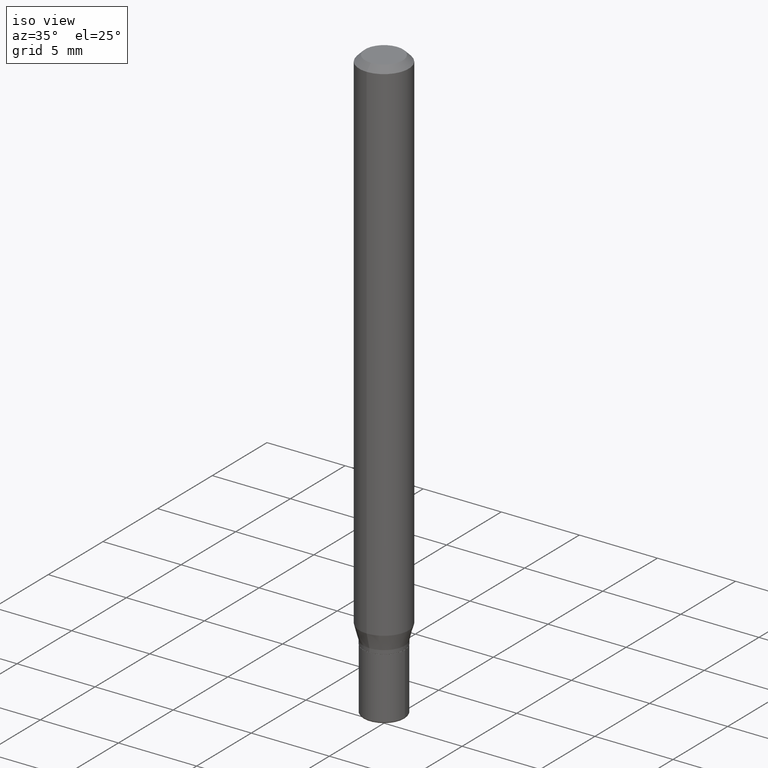
[diagram: clean part render]
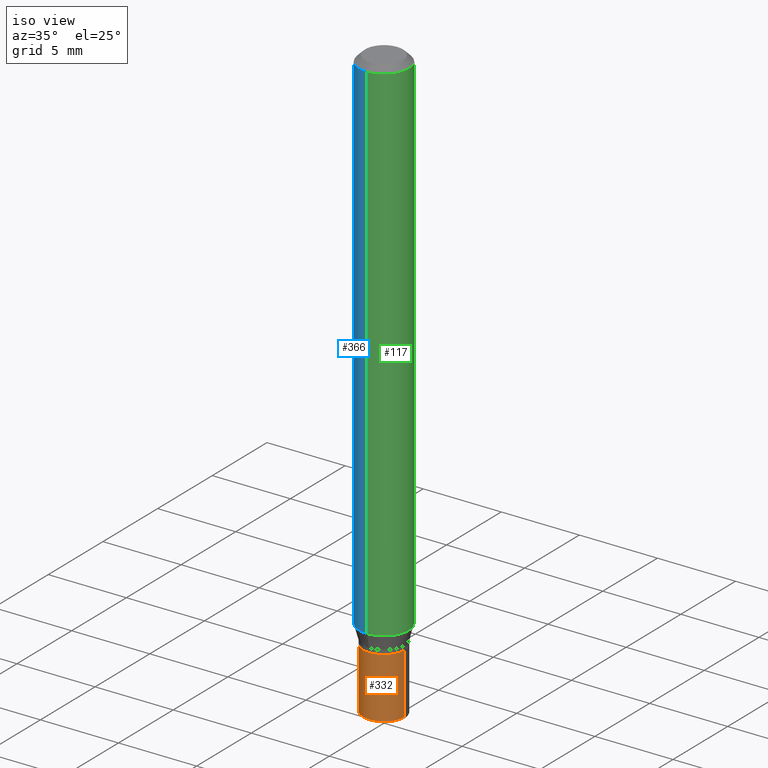
[diagram: same view with three faces highlighted in distinct colors, each labeled with its STEP entity id]
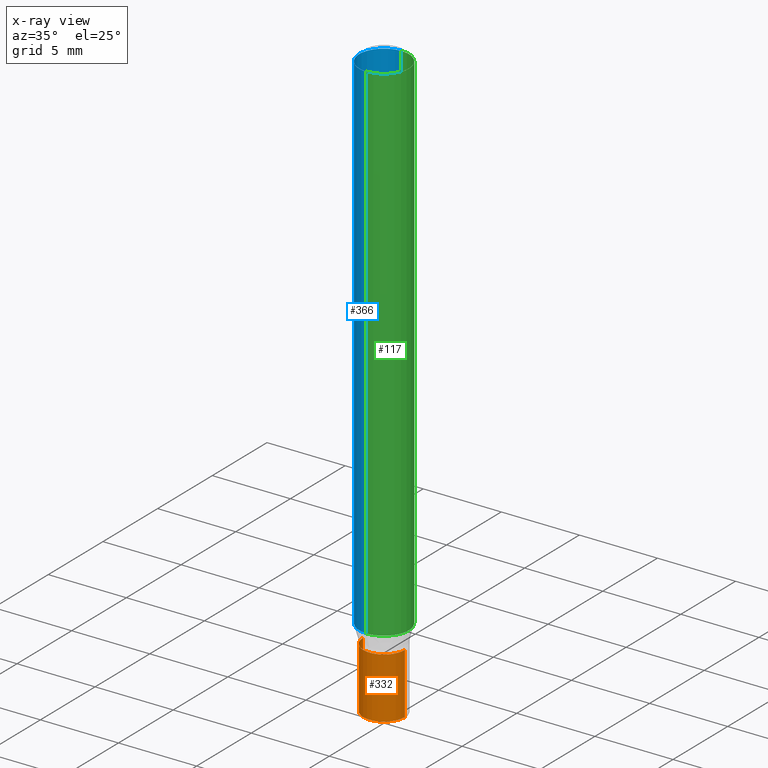
[diagram: x-ray of the same camera — body ghosted, the three highlighted faces saturated]
A machine part, iso view with three faces highlighted in distinct colors.
The next image is the same camera in x-ray (body ghosted, the three faces saturated) — at least one of them is partly hidden behind the body in this view.
Their STEP definitions:

[orange] entity #332 — the highlighted cylindrical surface (edge-blend (fillet) strip) has radius 1.3335 mm, axis along (-0, 0, 1).
#10 = DIRECTION ( 'NONE',  ( 1.000000000000000000, -6.982962677686266711E-15, 4.876176775795936353E-29 ) ) ;
#15 = DIRECTION ( 'NONE',  ( -2.445468806185136597E-29, 3.491481338843145583E-15, 1.000000000000000000 ) ) ;
#16 = EDGE_LOOP ( 'NONE', ( #365, #457, #370, #82 ) ) ;
#23 = CARTESIAN_POINT ( 'NONE',  ( -0.05249999999999999806, -4.579631342874949516E-15, -1.342000000000000082 ) ) ;
#24 = VERTEX_POINT ( 'NONE', #36 ) ;
#36 = CARTESIAN_POINT ( 'NONE',  ( 0.05250000000000017153, -5.586370142149033090E-15, -1.495000000000000107 ) ) ;
#44 = EDGE_CURVE ( 'NONE', #368, #258, #391, .T. ) ;
#65 = CARTESIAN_POINT ( 'NONE',  ( 3.655975865246779122E-29, -5.219764601570503141E-15, -1.495000000000000107 ) ) ;
#80 = CARTESIAN_POINT ( 'NONE',  ( -0.05250000000000017153, -4.579631342874947939E-15, -1.495000000000000107 ) ) ;
#82 = ORIENTED_EDGE ( 'NONE', *, *, #44, .F. ) ;
#84 = CYLINDRICAL_SURFACE ( 'NONE', #261, 0.05250000000000008826 ) ;
#149 = DIRECTION ( 'NONE',  ( 1.000000000000000000, -6.982962677686268288E-15, 0.000000000000000000 ) ) ;
#152 = DIRECTION ( 'NONE',  ( -2.445468806185136877E-29, 3.491481338843145188E-15, 1.000000000000000000 ) ) ;
#164 = CIRCLE ( 'NONE', #324, 0.05250000000000017153 ) ;
#170 = DIRECTION ( 'NONE',  ( -2.445468806185136877E-29, 3.491481338843145188E-15, 1.000000000000000000 ) ) ;
#178 = LINE ( 'NONE', #259, #236 ) ;
#183 = CARTESIAN_POINT ( 'NONE',  ( 3.281819137900453057E-29, -4.685567956727500961E-15, -1.342000000000000082 ) ) ;
#236 = VECTOR ( 'NONE', #170, 39.37007874015748143 ) ;
#237 = CARTESIAN_POINT ( 'NONE',  ( 0.05250000000000008826, -3.666055405785296038E-16, 2.559992807292870916E-30 ) ) ;
#258 = VERTEX_POINT ( 'NONE', #471 ) ;
#259 = CARTESIAN_POINT ( 'NONE',  ( -0.05250000000000008826, 3.730349362740532247E-16, -2.582440922383829865E-30 ) ) ;
#261 = AXIS2_PLACEMENT_3D ( 'NONE', #364, #15, #10 ) ;
#298 = VECTOR ( 'NONE', #152, 39.37007874015748143 ) ;
#309 = LINE ( 'NONE', #237, #298 ) ;
#324 = AXIS2_PLACEMENT_3D ( 'NONE', #65, #375, #385 ) ;
#332 = ADVANCED_FACE ( 'NONE', ( #360 ), #84, .T. ) ;
#338 = DIRECTION ( 'NONE',  ( -2.445468806185136597E-29, 3.491481338843145583E-15, 1.000000000000000000 ) ) ;
#358 = AXIS2_PLACEMENT_3D ( 'NONE', #183, #338, #149 ) ;
#360 = FACE_OUTER_BOUND ( 'NONE', #16, .T. ) ;
#364 = CARTESIAN_POINT ( 'NONE',  ( 0.000000000000000000, 0.000000000000000000, 0.000000000000000000 ) ) ;
#365 = ORIENTED_EDGE ( 'NONE', *, *, #374, .F. ) ;
#368 = VERTEX_POINT ( 'NONE', #23 ) ;
#370 = ORIENTED_EDGE ( 'NONE', *, *, #456, .T. ) ;
#374 = EDGE_CURVE ( 'NONE', #454, #368, #178, .T. ) ;
#375 = DIRECTION ( 'NONE',  ( -2.445468806185136597E-29, 3.491481338843145583E-15, 1.000000000000000000 ) ) ;
#385 = DIRECTION ( 'NONE',  ( 1.000000000000000000, -6.982962677686263555E-15, 0.000000000000000000 ) ) ;
#391 = CIRCLE ( 'NONE', #358, 0.05249999999999999806 ) ;
#399 = EDGE_CURVE ( 'NONE', #454, #24, #164, .T. ) ;
#454 = VERTEX_POINT ( 'NONE', #80 ) ;
#456 = EDGE_CURVE ( 'NONE', #24, #258, #309, .T. ) ;
#457 = ORIENTED_EDGE ( 'NONE', *, *, #399, .T. ) ;
#471 = CARTESIAN_POINT ( 'NONE',  ( 0.05249999999999999806, -5.052173497306030121E-15, -1.342000000000000082 ) ) ;

[blue] entity #366 — the highlighted cylindrical surface (edge-blend (fillet) strip) has radius 1.5875 mm, axis along (-0, 0, 1).
#1 = CARTESIAN_POINT ( 'NONE',  ( 4.440892098500944664E-16, 0.06249999999999995143, -0.01499999999999992138 ) ) ;
#4 = CARTESIAN_POINT ( 'NONE',  ( -4.364351673553916201E-16, -0.06250000000000000000, 2.182069885281771942E-16 ) ) ;
#13 = AXIS2_PLACEMENT_3D ( 'NONE', #369, #463, #254 ) ;
#38 = CARTESIAN_POINT ( 'NONE',  ( 3.668380774558412962E-31, -5.236967724676149048E-17, -0.01499999999999970281 ) ) ;
#46 = EDGE_CURVE ( 'NONE', #128, #354, #444, .T. ) ;
#72 = LINE ( 'NONE', #4, #281 ) ;
#108 = VERTEX_POINT ( 'NONE', #432 ) ;
#110 = CARTESIAN_POINT ( 'NONE',  ( 3.166251571593529273E-29, -4.520129808671913601E-15, -1.294679491924312087 ) ) ;
#125 = AXIS2_PLACEMENT_3D ( 'NONE', #110, #426, #483 ) ;
#128 = VERTEX_POINT ( 'NONE', #1 ) ;
#140 = DIRECTION ( 'NONE',  ( -2.445587183038990238E-29, 3.491311816450834712E-15, 1.000000000000000000 ) ) ;
#148 = ORIENTED_EDGE ( 'NONE', *, *, #403, .F. ) ;
#195 = DIRECTION ( 'NONE',  ( -2.445587183038990238E-29, 3.491311816450835107E-15, 1.000000000000000000 ) ) ;
#221 = FACE_OUTER_BOUND ( 'NONE', #420, .T. ) ;
#231 = DIRECTION ( 'NONE',  ( -2.445587183038990238E-29, 3.491311816450834712E-15, 1.000000000000000000 ) ) ;
#238 = ORIENTED_EDGE ( 'NONE', *, *, #310, .T. ) ;
#251 = CYLINDRICAL_SURFACE ( 'NONE', #13, 0.06250000000000000000 ) ;
#254 = DIRECTION ( 'NONE',  ( -6.982962677686265922E-15, -1.000000000000000000, 3.491311816450835107E-15 ) ) ;
#281 = VECTOR ( 'NONE', #231, 39.37007874015748143 ) ;
#284 = ORIENTED_EDGE ( 'NONE', *, *, #46, .F. ) ;
#310 = EDGE_CURVE ( 'NONE', #108, #469, #517, .T. ) ;
#318 = VECTOR ( 'NONE', #140, 39.37007874015748143 ) ;
#323 = AXIS2_PLACEMENT_3D ( 'NONE', #38, #195, #346 ) ;
#328 = CARTESIAN_POINT ( 'NONE',  ( 4.440892098500625669E-16, 0.06250000000000000000, -2.182069885281771942E-16 ) ) ;
#330 = CARTESIAN_POINT ( 'NONE',  ( -4.364351673553912750E-16, -0.06250000000000005551, -0.01499999999999948597 ) ) ;
#346 = DIRECTION ( 'NONE',  ( -6.982962677686265922E-15, -1.000000000000000000, 3.483106191921935554E-15 ) ) ;
#347 = CARTESIAN_POINT ( 'NONE',  ( -4.364351673553597698E-16, -0.06250000000000449640, -1.294679491924311865 ) ) ;
#354 = VERTEX_POINT ( 'NONE', #330 ) ;
#366 = ADVANCED_FACE ( 'NONE', ( #221 ), #251, .T. ) ;
#369 = CARTESIAN_POINT ( 'NONE',  ( 0.000000000000000000, 0.000000000000000000, 0.000000000000000000 ) ) ;
#403 = EDGE_CURVE ( 'NONE', #108, #128, #512, .T. ) ;
#420 = EDGE_LOOP ( 'NONE', ( #148, #238, #508, #284 ) ) ;
#426 = DIRECTION ( 'NONE',  ( -2.445587183038990238E-29, 3.491311816450835107E-15, 1.000000000000000000 ) ) ;
#432 = CARTESIAN_POINT ( 'NONE',  ( 4.440892098500943678E-16, 0.06249999999999550360, -1.294679491924312309 ) ) ;
#444 = CIRCLE ( 'NONE', #323, 0.06250000000000000000 ) ;
#463 = DIRECTION ( 'NONE',  ( -2.445587183038990238E-29, 3.491311816450835107E-15, 1.000000000000000000 ) ) ;
#469 = VERTEX_POINT ( 'NONE', #347 ) ;
#479 = EDGE_CURVE ( 'NONE', #469, #354, #72, .T. ) ;
#483 = DIRECTION ( 'NONE',  ( -6.982962677686265922E-15, -1.000000000000000000, 4.370956789862821150E-15 ) ) ;
#508 = ORIENTED_EDGE ( 'NONE', *, *, #479, .T. ) ;
#512 = LINE ( 'NONE', #328, #318 ) ;
#517 = CIRCLE ( 'NONE', #125, 0.06250000000000000000 ) ;

[green] entity #117 — the highlighted cylindrical surface (edge-blend (fillet) strip) has radius 1.5875 mm, axis along (-0, 0, 1).
#1 = CARTESIAN_POINT ( 'NONE',  ( 4.440892098500944664E-16, 0.06249999999999995143, -0.01499999999999992138 ) ) ;
#4 = CARTESIAN_POINT ( 'NONE',  ( -4.364351673553916201E-16, -0.06250000000000000000, 2.182069885281771942E-16 ) ) ;
#41 = DIRECTION ( 'NONE',  ( -6.982962677686265922E-15, -1.000000000000000000, 4.370956789862821150E-15 ) ) ;
#47 = CIRCLE ( 'NONE', #161, 0.06250000000000000000 ) ;
#55 = EDGE_CURVE ( 'NONE', #469, #108, #47, .T. ) ;
#72 = LINE ( 'NONE', #4, #281 ) ;
#74 = AXIS2_PLACEMENT_3D ( 'NONE', #154, #314, #313 ) ;
#75 = AXIS2_PLACEMENT_3D ( 'NONE', #449, #407, #411 ) ;
#86 = ORIENTED_EDGE ( 'NONE', *, *, #403, .T. ) ;
#108 = VERTEX_POINT ( 'NONE', #432 ) ;
#117 = ADVANCED_FACE ( 'NONE', ( #472 ), #400, .T. ) ;
#128 = VERTEX_POINT ( 'NONE', #1 ) ;
#140 = DIRECTION ( 'NONE',  ( -2.445587183038990238E-29, 3.491311816450834712E-15, 1.000000000000000000 ) ) ;
#154 = CARTESIAN_POINT ( 'NONE',  ( 0.000000000000000000, 0.000000000000000000, 0.000000000000000000 ) ) ;
#161 = AXIS2_PLACEMENT_3D ( 'NONE', #513, #343, #41 ) ;
#190 = ORIENTED_EDGE ( 'NONE', *, *, #479, .F. ) ;
#219 = CIRCLE ( 'NONE', #75, 0.06250000000000000000 ) ;
#231 = DIRECTION ( 'NONE',  ( -2.445587183038990238E-29, 3.491311816450834712E-15, 1.000000000000000000 ) ) ;
#281 = VECTOR ( 'NONE', #231, 39.37007874015748143 ) ;
#313 = DIRECTION ( 'NONE',  ( -6.982962677686265922E-15, -1.000000000000000000, 3.491311816450835107E-15 ) ) ;
#314 = DIRECTION ( 'NONE',  ( -2.445587183038990238E-29, 3.491311816450835107E-15, 1.000000000000000000 ) ) ;
#318 = VECTOR ( 'NONE', #140, 39.37007874015748143 ) ;
#327 = EDGE_CURVE ( 'NONE', #354, #128, #219, .T. ) ;
#328 = CARTESIAN_POINT ( 'NONE',  ( 4.440892098500625669E-16, 0.06250000000000000000, -2.182069885281771942E-16 ) ) ;
#330 = CARTESIAN_POINT ( 'NONE',  ( -4.364351673553912750E-16, -0.06250000000000005551, -0.01499999999999948597 ) ) ;
#343 = DIRECTION ( 'NONE',  ( -2.445587183038990238E-29, 3.491311816450835107E-15, 1.000000000000000000 ) ) ;
#347 = CARTESIAN_POINT ( 'NONE',  ( -4.364351673553597698E-16, -0.06250000000000449640, -1.294679491924311865 ) ) ;
#354 = VERTEX_POINT ( 'NONE', #330 ) ;
#400 = CYLINDRICAL_SURFACE ( 'NONE', #74, 0.06250000000000000000 ) ;
#403 = EDGE_CURVE ( 'NONE', #108, #128, #512, .T. ) ;
#407 = DIRECTION ( 'NONE',  ( -2.445587183038990238E-29, 3.491311816450835107E-15, 1.000000000000000000 ) ) ;
#411 = DIRECTION ( 'NONE',  ( -6.982962677686265922E-15, -1.000000000000000000, 3.483106191921935554E-15 ) ) ;
#417 = EDGE_LOOP ( 'NONE', ( #477, #86, #489, #190 ) ) ;
#432 = CARTESIAN_POINT ( 'NONE',  ( 4.440892098500943678E-16, 0.06249999999999550360, -1.294679491924312309 ) ) ;
#449 = CARTESIAN_POINT ( 'NONE',  ( 3.668380774558412962E-31, -5.236967724676149048E-17, -0.01499999999999970281 ) ) ;
#469 = VERTEX_POINT ( 'NONE', #347 ) ;
#472 = FACE_OUTER_BOUND ( 'NONE', #417, .T. ) ;
#477 = ORIENTED_EDGE ( 'NONE', *, *, #55, .T. ) ;
#479 = EDGE_CURVE ( 'NONE', #469, #354, #72, .T. ) ;
#489 = ORIENTED_EDGE ( 'NONE', *, *, #327, .F. ) ;
#512 = LINE ( 'NONE', #328, #318 ) ;
#513 = CARTESIAN_POINT ( 'NONE',  ( 3.166251571593529273E-29, -4.520129808671913601E-15, -1.294679491924312087 ) ) ;